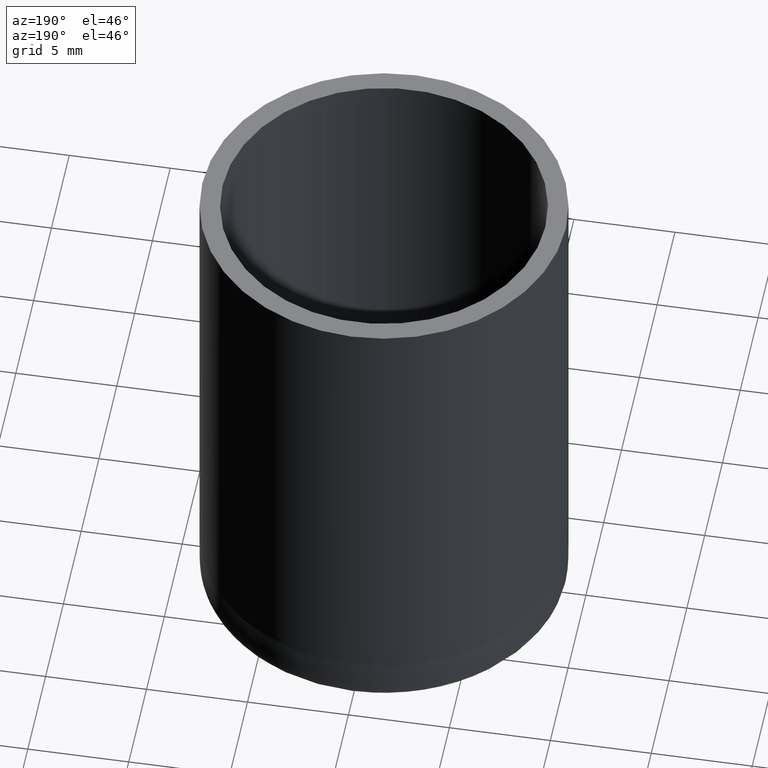
[diagram: clean part render]
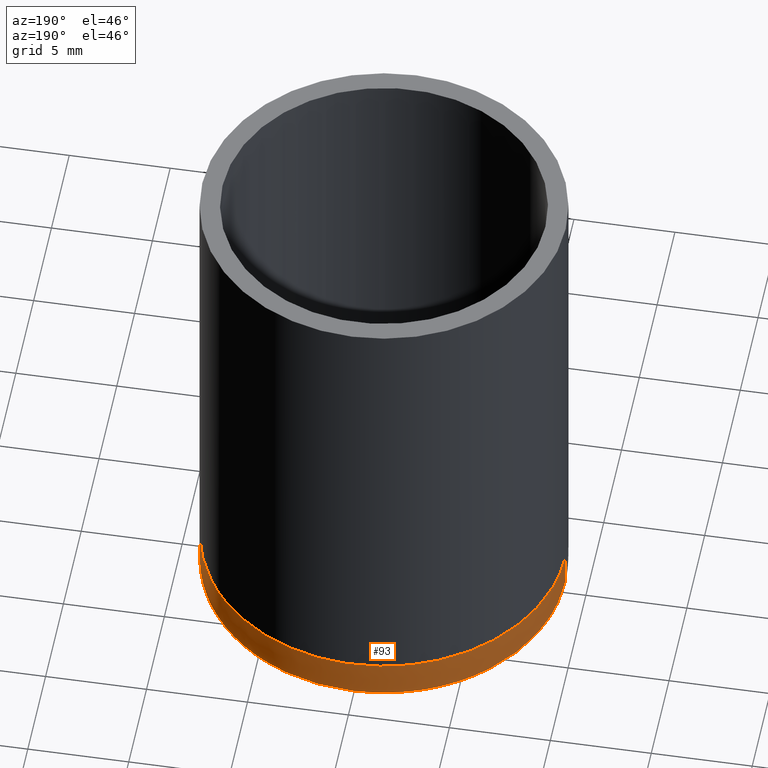
[diagram: same view with one face highlighted and labeled with its STEP entity id]
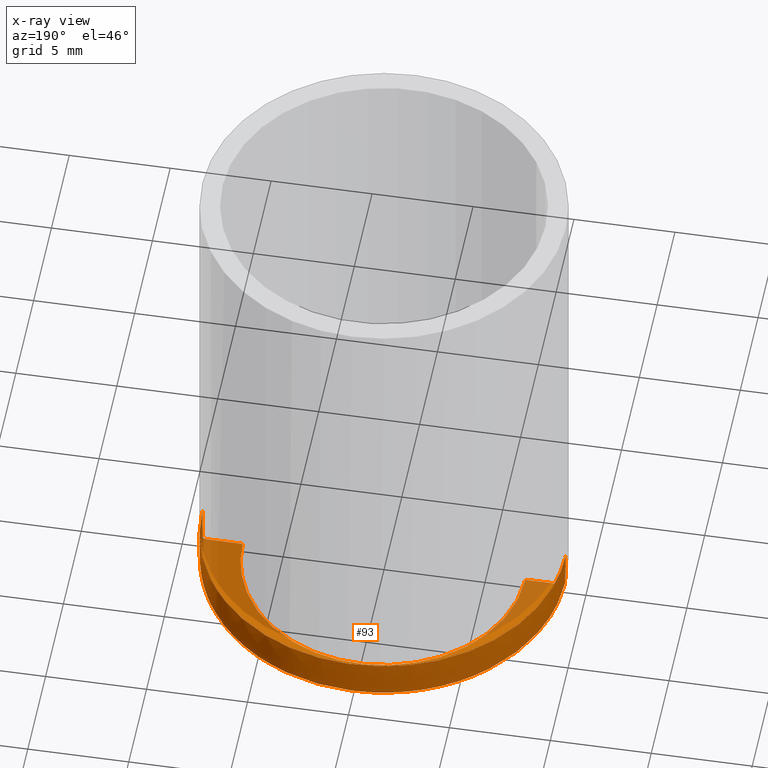
[diagram: x-ray of the same camera — body ghosted, the highlighted face saturated]
A machine part, auxiliary view. The second image highlights one B-rep face of the part: STEP entity #93.
The next image is the same camera in x-ray: the body ghosted, the highlighted face saturated — about 21% of this face is hidden behind the body in this view.
In plain terms, the highlighted face is a freeform B-spline surface patch.
Its self-contained STEP definition (entity closure, byte-faithful):
#3 =( BOUNDED_SURFACE ( )  B_SPLINE_SURFACE ( 2, 3, ( 
 ( #583, #352, #393, #348, #116, #298, #19, #390, #21, #65, #445, #110, #69, #157, #300, #114, #438, #160, #15, #444, #496, #258, #208, #163, #164, #500, #343, #543, #256, #18, #63, #387, #351, #587 ),
 ( #112, #106, #119, #592, #307, #216, #593, #551, #512, #76, #261, #602, #505, #361, #554, #212, #118, #596, #266, #506, #447, #508, #259, #260, #224, #452, #175, #404, #513, #454, #23, #314, #401, #356 ),
 ( #32, #125, #74, #221, #357, #264, #304, #30, #168, #395, #213, #22, #450, #127, #170, #552, #394, #459, #78, #594, #311, #399, #359, #308, #355, #26, #75, #72, #171, #117, #166, #555, #515, #134 ) ),
 .UNSPECIFIED., .F., .T., .T. ) 
 B_SPLINE_SURFACE_WITH_KNOTS ( ( 3, 3 ),
 ( 4, 2, 2, 2, 2, 2, 2, 2, 2, 2, 2, 2, 2, 2, 2, 2, 4 ),
 ( 0.0000000000000000000, 1.000000000000000000 ),
 ( 0.0000000000000000000, 0.3926990816987241400, 0.7853981633974482800, 1.178097245096172400, 1.570796326794896600, 1.963495408493620700, 2.356194490192344800, 2.748893571891069000, 3.141592653589793100, 3.534291735288517300, 3.926990816987241400, 4.319689898685965100, 4.712388980384689700, 5.105088062083414300, 5.497787143782138000, 5.890486225480861600, 6.283185307179586200 ),
 .UNSPECIFIED. ) 
 GEOMETRIC_REPRESENTATION_ITEM ( )  RATIONAL_B_SPLINE_SURFACE ( (
 ( 1.000000000000000000, 1.000000000000000000, 1.000000000000000000, 1.000000000000000000, 1.000000000000000000, 1.000000000000000000, 1.000000000000000000, 1.000000000000000000, 1.000000000000000000, 1.000000000000000000, 1.000000000000000000, 1.000000000000000000, 1.000000000000000000, 1.000000000000000000, 1.000000000000000000, 1.000000000000000000, 1.000000000000000000, 1.000000000000000000, 1.000000000000000000, 1.000000000000000000, 1.000000000000000000, 1.000000000000000000, 1.000000000000000000, 1.000000000000000000, 1.000000000000000000, 1.000000000000000000, 1.000000000000000000, 1.000000000000000000, 1.000000000000000000, 1.000000000000000000, 1.000000000000000000, 1.000000000000000000, 1.000000000000000000, 1.000000000000000000),
 ( 14.14213562373095100, 14.14213562373095100, 14.14213562373095500, 14.14213562373095500, 14.14213562373095100, 14.14213562373095100, 14.14213562373095500, 14.14213562373095500, 14.14213562373095100, 14.14213562373095100, 14.14213562373094900, 14.14213562373094900, 14.14213562373095500, 14.14213562373095500, 14.14213562373094900, 14.14213562373094900, 14.14213562373095100, 14.14213562373095100, 14.14213562373094600, 14.14213562373094600, 14.14213562373095100, 14.14213562373095100, 14.14213562373094900, 14.14213562373094900, 14.14213562373095500, 14.14213562373095500, 14.14213562373095100, 14.14213562373095100, 14.14213562373095500, 14.14213562373095500, 14.14213562373094900, 14.14213562373094900, 14.14213562373095100, 14.14213562373095100),
 ( 1.000000000000000000, 1.000000000000000000, 1.000000000000000000, 1.000000000000000000, 1.000000000000000000, 1.000000000000000000, 1.000000000000000000, 1.000000000000000000, 1.000000000000000000, 1.000000000000000000, 1.000000000000000000, 1.000000000000000000, 1.000000000000000000, 1.000000000000000000, 1.000000000000000000, 1.000000000000000000, 1.000000000000000000, 1.000000000000000000, 1.000000000000000000, 1.000000000000000000, 1.000000000000000000, 1.000000000000000000, 1.000000000000000000, 1.000000000000000000, 1.000000000000000000, 1.000000000000000000, 1.000000000000000000, 1.000000000000000000, 1.000000000000000000, 1.000000000000000000, 1.000000000000000000, 1.000000000000000000, 1.000000000000000000, 1.000000000000000000) ) ) 
 REPRESENTATION_ITEM ( '' )  SURFACE ( )  );
#7 = FACE_OUTER_BOUND ( 'NONE', #546, .T. ) ;
#12 = CARTESIAN_POINT ( 'NONE',  ( 7.864077495188316100, 4.532570823338097900, 2.000000000000001800 ) ) ;
#15 = CARTESIAN_POINT ( 'NONE',  ( -8.765754088481543200, -2.355730962935216300, 2.000000000000001800 ) ) ;
#18 = CARTESIAN_POINT ( 'NONE',  ( 7.197001578750059600, -5.530920482607799100, 2.000000000000001800 ) ) ;
#19 = CARTESIAN_POINT ( 'NONE',  ( 4.532570819635877200, 7.864077496721830800, 2.000000000000001800 ) ) ;
#21 = CARTESIAN_POINT ( 'NONE',  ( 1.178097241089039600, 9.000000000000000000, 2.000000000000001800 ) ) ;
#22 = CARTESIAN_POINT ( 'NONE',  ( -3.525332859716895600, 6.116504719672516200, 1.734723475976807100E-015 ) ) ;
#23 = CARTESIAN_POINT ( 'NONE',  ( 7.864077496722276600, -4.532570819635886900, 1.734723475976807300E-015 ) ) ;
#26 = CARTESIAN_POINT ( 'NONE',  ( 0.9162978541803755700, -6.999999999999999100, 1.734723475976807100E-015 ) ) ;
#28 = CARTESIAN_POINT ( 'NONE',  ( 5.273456898050755000, 4.626093170442653800, -0.0000000000000000000 ) ) ;
#30 = CARTESIAN_POINT ( 'NONE',  ( 1.832235193394360100, 6.817808735485497700, 1.734723475976807100E-015 ) ) ;
#31 = CARTESIAN_POINT ( 'NONE',  ( 7.000000000000000900, 0.4583463344911470900, -0.0000000000000000000 ) ) ;
#32 = CARTESIAN_POINT ( 'NONE',  ( 6.999999999999999100, 0.0000000000000000000, 1.734723475976807100E-015 ) ) ;
#36 = CARTESIAN_POINT ( 'NONE',  ( -9.000000000000000000, 1.103971260012029000E-015, 1.734723475976807300E-015 ) ) ;
#38 = CARTESIAN_POINT ( 'NONE',  ( 6.955024288918110600, 0.9135289665447016100, -0.0000000000000000000 ) ) ;
#40 = CARTESIAN_POINT ( 'NONE',  ( -6.999999999999999100, 8.673617379884035500E-016, 8.673617379884035500E-016 ) ) ;
#48 = CARTESIAN_POINT ( 'NONE',  ( 9.000000000000000000, 0.0000000000000000000, 1.734723475976807300E-015 ) ) ;
#50 = CARTESIAN_POINT ( 'NONE',  ( 5.530920479774233700, 7.197001581583620600, 2.000000000000001800 ) ) ;
#57 = CARTESIAN_POINT ( 'NONE',  ( 6.999999999999999100, 0.0000000000000000000, 8.673617379884035500E-016 ) ) ;
#63 = CARTESIAN_POINT ( 'NONE',  ( 7.864077496721888500, -4.532570819635727100, 2.000000000000001800 ) ) ;
#65 = CARTESIAN_POINT ( 'NONE',  ( -1.178097241089038200, 9.000000000000000000, 2.000000000000001800 ) ) ;
#69 = CARTESIAN_POINT ( 'NONE',  ( -5.530920482607776900, 7.197001578750081000, 2.000000000000001800 ) ) ;
#72 = CARTESIAN_POINT ( 'NONE',  ( 3.525332859716758800, -6.116504719672669000, 1.734723475976807100E-015 ) ) ;
#74 = CARTESIAN_POINT ( 'NONE',  ( 6.817808735485234800, 1.832235193394431600, 1.734723475976807100E-015 ) ) ;
#75 = CARTESIAN_POINT ( 'NONE',  ( 1.832235193394475200, -6.817808735485352000, 1.734723475976807100E-015 ) ) ;
#76 = CARTESIAN_POINT ( 'NONE',  ( -1.178097241089038200, 8.999999999999998200, 1.734723475976807300E-015 ) ) ;
#78 = CARTESIAN_POINT ( 'NONE',  ( -6.817808735485646900, -1.832235193394427900, 1.734723475976807100E-015 ) ) ;
#80 = CARTESIAN_POINT ( 'NONE',  ( -5.273401766169546300, 4.626038038560709600, 0.0000000000000000000 ) ) ;
#82 = CARTESIAN_POINT ( 'NONE',  ( 9.000000000000000000, 5.510910596163088600E-016, 2.000000000000001800 ) ) ;
#92 = CARTESIAN_POINT ( 'NONE',  ( -8.999999999999998200, 1.178097245096171100, 2.000000000000001800 ) ) ;
#93 = ADVANCED_FACE ( 'NONE', ( #7 ), #3, .T. ) ;
#106 = CARTESIAN_POINT ( 'NONE',  ( 8.999999999999998200, 1.178097241091292000, 1.734723475976807300E-015 ) ) ;
#110 = CARTESIAN_POINT ( 'NONE',  ( -4.532570819636053000, 7.864077496721756200, 2.000000000000001800 ) ) ;
#112 = CARTESIAN_POINT ( 'NONE',  ( 8.999999999999998200, 0.0000000000000000000, 1.734723475976807300E-015 ) ) ;
#114 = CARTESIAN_POINT ( 'NONE',  ( -8.765754088481420700, 2.355730962935523200, 2.000000000000001800 ) ) ;
#116 = CARTESIAN_POINT ( 'NONE',  ( 7.197001578749834000, 5.530920482608019400, 2.000000000000001800 ) ) ;
#117 = CARTESIAN_POINT ( 'NONE',  ( 5.597667894583356200, -4.301827042028308200, 1.734723475976807100E-015 ) ) ;
#118 = CARTESIAN_POINT ( 'NONE',  ( -8.999999999999998200, 1.178097241089039800, 1.734723475976807300E-015 ) ) ;
#119 = CARTESIAN_POINT ( 'NONE',  ( 8.765754088480962400, 2.355730962935613300, 1.734723475976806900E-015 ) ) ;
#120 = VERTEX_POINT ( 'NONE', #136 ) ;
#122 = VERTEX_POINT ( 'NONE', #82 ) ;
#123 = CARTESIAN_POINT ( 'NONE',  ( 6.075901012625232400, 3.505729637477756900, -0.0000000000000000000 ) ) ;
#125 = CARTESIAN_POINT ( 'NONE',  ( 6.999999999999999100, 0.9162978541821159600, 1.734723475976807100E-015 ) ) ;
#127 = CARTESIAN_POINT ( 'NONE',  ( -5.597667894583401500, 4.301827042028262900, 1.734723475976807100E-015 ) ) ;
#129 = CARTESIAN_POINT ( 'NONE',  ( 4.626038038560912100, 5.273401766169008900, 0.0000000000000000000 ) ) ;
#130 = CARTESIAN_POINT ( 'NONE',  ( -4.626093170442124400, 5.273456898050948600, -0.0000000000000000000 ) ) ;
#132 = CARTESIAN_POINT ( 'NONE',  ( -0.4577552816898854400, 6.999961015872925100, 0.0000000000000000000 ) ) ;
#134 = CARTESIAN_POINT ( 'NONE',  ( 6.999999999999999100, 0.0000000000000000000, 1.734723475976807100E-015 ) ) ;
#136 = CARTESIAN_POINT ( 'NONE',  ( -6.999999999999999100, 8.673617379884035500E-016, 8.673617379884035500E-016 ) ) ;
#146 = CARTESIAN_POINT ( 'NONE',  ( 2.355730959233521400, 8.765754090014837600, 2.000000000000001300 ) ) ;
#157 = CARTESIAN_POINT ( 'NONE',  ( -7.197001578750087200, 5.530920482607766300, 2.000000000000001800 ) ) ;
#158 = EDGE_CURVE ( 'NONE', #455, #120, #372, .T. ) ;
#160 = CARTESIAN_POINT ( 'NONE',  ( -9.000000000000000000, -1.178097241089037600, 2.000000000000001800 ) ) ;
#163 = CARTESIAN_POINT ( 'NONE',  ( -2.355730962936081400, -8.765754088481189800, 2.000000000000001800 ) ) ;
#164 = CARTESIAN_POINT ( 'NONE',  ( -1.178097241089025800, -9.000000000000001800, 2.000000000000001800 ) ) ;
#166 = CARTESIAN_POINT ( 'NONE',  ( 6.116504719672263900, -3.525332859716779700, 1.734723475976807100E-015 ) ) ;
#168 = CARTESIAN_POINT ( 'NONE',  ( 0.9162978541803639100, 6.999999999999999100, 1.734723475976807100E-015 ) ) ;
#170 = CARTESIAN_POINT ( 'NONE',  ( -6.116504719672365200, 3.525332859717026100, 1.734723475976807100E-015 ) ) ;
#171 = CARTESIAN_POINT ( 'NONE',  ( 4.301827042028279800, -5.597667894583384700, 1.734723475976807100E-015 ) ) ;
#172 = EDGE_CURVE ( 'NONE', #120, #332, #288, .T. ) ;
#175 = CARTESIAN_POINT ( 'NONE',  ( 2.355730962935725700, -8.765754088480882400, 3.991155744852366200E-013 ) ) ;
#178 = B_SPLINE_CURVE_WITH_KNOTS ( 'NONE', 3,
 ( #615, #325, #579, #12, #194, #50, #374, #146, #487, #481, #248, #190, #376, #484, #572, #576, #92, #532 ),
 .UNSPECIFIED., .F., .F.,
 ( 4, 2, 2, 2, 2, 2, 2, 2, 4 ),
 ( 0.0000000000000000000, 0.06250000000000005600, 0.1250000000000001100, 0.1875000000000001100, 0.2500000000000001100, 0.3125000000000001100, 0.3750000000000001100, 0.4375000000000000600, 0.5000000000000000000 ),
 .UNSPECIFIED. ) ;
#190 = CARTESIAN_POINT ( 'NONE',  ( -4.532570823338096100, 7.864077495188319700, 2.000000000000001300 ) ) ;
#194 = CARTESIAN_POINT ( 'NONE',  ( 7.197001581583618800, 5.530920479774234600, 2.000000000000001800 ) ) ;
#196 = CARTESIAN_POINT ( 'NONE',  ( -9.000000000000000000, 5.421010862427522200E-016, 2.000000000000001800 ) ) ;
#208 = CARTESIAN_POINT ( 'NONE',  ( -4.532570819635557400, -7.864077496721959500, 2.000000000000001800 ) ) ;
#212 = CARTESIAN_POINT ( 'NONE',  ( -8.765754088481482900, 2.355730962935348200, 1.734723475976807300E-015 ) ) ;
#213 = CARTESIAN_POINT ( 'NONE',  ( -1.832235193394365500, 6.817808735485495000, 1.734723475976807100E-015 ) ) ;
#216 = CARTESIAN_POINT ( 'NONE',  ( 5.530920482608021200, 7.197001578749834000, 1.734723475976807300E-015 ) ) ;
#217 = CARTESIAN_POINT ( 'NONE',  ( 1.817385608177650700, 6.775236007512286400, -0.0000000000000000000 ) ) ;
#221 = CARTESIAN_POINT ( 'NONE',  ( 6.116504719672778200, 3.525332859716825400, 1.734723475976807100E-015 ) ) ;
#222 = ORIENTED_EDGE ( 'NONE', *, *, #451, .F. ) ;
#224 = CARTESIAN_POINT ( 'NONE',  ( -1.178097241089026200, -8.999999999999998200, 1.734723475976806900E-015 ) ) ;
#228 = CARTESIAN_POINT ( 'NONE',  ( 6.642368106597753100, 2.255888209478373000, -0.0000000000000000000 ) ) ;
#231 = CARTESIAN_POINT ( 'NONE',  ( -7.000038984127071400, 0.4577552816867011500, -0.0000000000000000000 ) ) ;
#232 = CARTESIAN_POINT ( 'NONE',  ( 9.000000000000000000, 5.510910596163088600E-016, 2.000000000000001800 ) ) ;
#248 = CARTESIAN_POINT ( 'NONE',  ( -2.355730959233523600, 8.765754090014837600, 2.000000000000001800 ) ) ;
#256 = CARTESIAN_POINT ( 'NONE',  ( 5.530920482607757400, -7.197001578750090700, 2.000000000000001800 ) ) ;
#258 = CARTESIAN_POINT ( 'NONE',  ( -5.530920482607371000, -7.197001578750484200, 2.000000000000001800 ) ) ;
#259 = CARTESIAN_POINT ( 'NONE',  ( -4.532570819635886000, -7.864077496722276600, 1.734723475976807300E-015 ) ) ;
#260 = CARTESIAN_POINT ( 'NONE',  ( -2.355730962935751500, -8.765754088480871800, 1.734723475976807300E-015 ) ) ;
#261 = CARTESIAN_POINT ( 'NONE',  ( -2.355730962935641800, 8.765754088481578800, 1.734723475976807300E-015 ) ) ;
#263 = CARTESIAN_POINT ( 'NONE',  ( -3.101679843625301000, 6.291945348562983000, 0.0000000000000000000 ) ) ;
#264 = CARTESIAN_POINT ( 'NONE',  ( 4.301827042028372200, 5.597667894583291400, 1.734723475976807100E-015 ) ) ;
#265 = CARTESIAN_POINT ( 'NONE',  ( -1.817370587953826900, 6.775160495766372500, 0.0000000000000000000 ) ) ;
#266 = CARTESIAN_POINT ( 'NONE',  ( -8.765754088483079800, -2.355730962935127100, 3.991155744864715300E-013 ) ) ;
#268 = CARTESIAN_POINT ( 'NONE',  ( -9.000000000000000000, 5.421010862427522200E-016, 2.000000000000001800 ) ) ;
#269 = CARTESIAN_POINT ( 'NONE',  ( 6.775121444590564800, 1.817566825776616900, 0.0000000000000000000 ) ) ;
#272 = CARTESIAN_POINT ( 'NONE',  ( -3.505729637479674500, 6.075901012623995200, -0.0000000000000000000 ) ) ;
#278 = ORIENTED_EDGE ( 'NONE', *, *, #172, .F. ) ;
#288 = B_SPLINE_CURVE_WITH_KNOTS ( 'NONE', 3,
 ( #518, #231, #606, #367, #363, #563, #557, #603, #80, #130, #595, #272, #263, #463, #265, #458, #132, #406, #605, #217, #310, #601, #313, #320, #129, #28, #364, #123, #461, #228, #269, #38, #31, #453 ),
 .UNSPECIFIED., .F., .F.,
 ( 4, 2, 2, 2, 2, 2, 2, 2, 2, 2, 2, 2, 2, 2, 2, 2, 4 ),
 ( 0.5000000000000000000, 0.5312500000000000000, 0.5624999999999998900, 0.5937499999999998900, 0.6249999999999998900, 0.6562499999999998900, 0.6874999999999998900, 0.7187499999999998900, 0.7500000000000000000, 0.7812500000000000000, 0.8125000000000000000, 0.8437500000000000000, 0.8750000000000000000, 0.9062500000000000000, 0.9375000000000000000, 0.9687500000000000000, 1.000000000000000000 ),
 .UNSPECIFIED. ) ;
#298 = CARTESIAN_POINT ( 'NONE',  ( 5.530920482608021200, 7.197001578749832300, 2.000000000000001800 ) ) ;
#300 = CARTESIAN_POINT ( 'NONE',  ( -7.864077496721726800, 4.532570819636115200, 2.000000000000001800 ) ) ;
#304 = CARTESIAN_POINT ( 'NONE',  ( 3.525332859716890700, 6.116504719672518900, 1.734723475976807100E-015 ) ) ;
#307 = CARTESIAN_POINT ( 'NONE',  ( 7.197001578749834000, 5.530920482608020300, 1.734723475976807300E-015 ) ) ;
#308 = CARTESIAN_POINT ( 'NONE',  ( -1.832235193394495100, -6.817808735485344100, 1.734723475976807100E-015 ) ) ;
#310 = CARTESIAN_POINT ( 'NONE',  ( 2.255858372324568900, 6.642296073321866800, 0.0000000000000000000 ) ) ;
#311 = CARTESIAN_POINT ( 'NONE',  ( -5.597667894583792300, -4.301827042027873000, 1.734723475976807100E-015 ) ) ;
#313 = CARTESIAN_POINT ( 'NONE',  ( 3.505686863511604300, 6.075836996856180500, 0.0000000000000000000 ) ) ;
#314 = CARTESIAN_POINT ( 'NONE',  ( 8.765754088480871800, -2.355730962935751900, 1.734723475976807300E-015 ) ) ;
#320 = CARTESIAN_POINT ( 'NONE',  ( 4.271815936512706600, 5.564018512806888400, -0.0000000000000000000 ) ) ;
#325 = CARTESIAN_POINT ( 'NONE',  ( 9.000000000000001800, 1.178097245096173800, 2.000000000000002700 ) ) ;
#332 = VERTEX_POINT ( 'NONE', #419 ) ;
#343 = CARTESIAN_POINT ( 'NONE',  ( 2.355730962936054300, -8.765754088481196900, 2.000000000000001800 ) ) ;
#348 = CARTESIAN_POINT ( 'NONE',  ( 7.864077496721839600, 4.532570819635854100, 2.000000000000001800 ) ) ;
#351 = CARTESIAN_POINT ( 'NONE',  ( 9.000000000000000000, -1.178097241091293100, 2.000000000000001800 ) ) ;
#352 = CARTESIAN_POINT ( 'NONE',  ( 9.000000000000000000, 1.178097241091291800, 2.000000000000001800 ) ) ;
#355 = CARTESIAN_POINT ( 'NONE',  ( -0.9162978541803532600, -6.999999999999999100, 1.734723475976807100E-015 ) ) ;
#356 = CARTESIAN_POINT ( 'NONE',  ( 8.999999999999998200, 0.0000000000000000000, 1.734723475976807300E-015 ) ) ;
#357 = CARTESIAN_POINT ( 'NONE',  ( 5.597667894583292300, 4.301827042028371300, 1.734723475976807100E-015 ) ) ;
#359 = CARTESIAN_POINT ( 'NONE',  ( -3.525332859716778800, -6.116504719672661000, 1.734723475976807100E-015 ) ) ;
#361 = CARTESIAN_POINT ( 'NONE',  ( -7.197001578750088100, 5.530920482607769800, 1.734723475976806900E-015 ) ) ;
#363 = CARTESIAN_POINT ( 'NONE',  ( -6.642296073323473500, 2.255858372321499800, 0.0000000000000000000 ) ) ;
#364 = CARTESIAN_POINT ( 'NONE',  ( 5.563954497038031900, 4.271773162546506500, 0.0000000000000000000 ) ) ;
#367 = CARTESIAN_POINT ( 'NONE',  ( -6.775236007513320200, 1.817385608175990300, -0.0000000000000000000 ) ) ;
#372 =( BOUNDED_CURVE ( )  B_SPLINE_CURVE ( 2, ( #268, #36, #40 ),
 .UNSPECIFIED., .F., .F. ) 
 B_SPLINE_CURVE_WITH_KNOTS ( ( 3, 3 ),
 ( 0.0000000000000000000, 1.000000000000000000 ),
 .UNSPECIFIED. ) 
 CURVE ( )  GEOMETRIC_REPRESENTATION_ITEM ( )  RATIONAL_B_SPLINE_CURVE ( ( 1.000000000000000000, 14.14213562373095100, 1.000000000000000000 ) ) 
 REPRESENTATION_ITEM ( '' )  );
#374 = CARTESIAN_POINT ( 'NONE',  ( 4.532570823338096100, 7.864077495188323200, 2.000000000000002200 ) ) ;
#376 = CARTESIAN_POINT ( 'NONE',  ( -5.530920479774233700, 7.197001581583620600, 2.000000000000001800 ) ) ;
#387 = CARTESIAN_POINT ( 'NONE',  ( 8.765754088481260800, -2.355730962935912200, 2.000000000000001800 ) ) ;
#390 = CARTESIAN_POINT ( 'NONE',  ( 2.355730962935730600, 8.765754088481333600, 2.000000000000001800 ) ) ;
#393 = CARTESIAN_POINT ( 'NONE',  ( 8.765754088481321200, 2.355730962935762600, 2.000000000000001800 ) ) ;
#394 = CARTESIAN_POINT ( 'NONE',  ( -6.999999999999999100, 0.9162978541803642500, 1.734723475976807100E-015 ) ) ;
#395 = CARTESIAN_POINT ( 'NONE',  ( -0.9162978541803630300, 6.999999999999999100, 1.734723475976807100E-015 ) ) ;
#399 = CARTESIAN_POINT ( 'NONE',  ( -4.301827042027866800, -5.597667894583798500, 1.734723475976807100E-015 ) ) ;
#401 = CARTESIAN_POINT ( 'NONE',  ( 8.999999999999998200, -1.178097241091293100, 1.734723475976807300E-015 ) ) ;
#404 = CARTESIAN_POINT ( 'NONE',  ( 4.532570819635861200, -7.864077496722286400, -3.956461275332821500E-013 ) ) ;
#406 = CARTESIAN_POINT ( 'NONE',  ( 0.4577552816898847700, 7.000038984127071400, -0.0000000000000000000 ) ) ;
#419 = CARTESIAN_POINT ( 'NONE',  ( 6.999999999999999100, 0.0000000000000000000, 8.673617379884035500E-016 ) ) ;
#438 = CARTESIAN_POINT ( 'NONE',  ( -9.000000000000000000, 1.178097241089039800, 2.000000000000001800 ) ) ;
#444 = CARTESIAN_POINT ( 'NONE',  ( -7.864077496721624700, -4.532570819636373600, 2.000000000000001800 ) ) ;
#445 = CARTESIAN_POINT ( 'NONE',  ( -2.355730962935568100, 8.765754088481401100, 2.000000000000001800 ) ) ;
#447 = CARTESIAN_POINT ( 'NONE',  ( -7.197001578750476200, -5.530920482607379000, 1.734723475976807300E-015 ) ) ;
#448 = EDGE_CURVE ( 'NONE', #122, #332, #541, .T. ) ;
#450 = CARTESIAN_POINT ( 'NONE',  ( -4.301827042028270000, 5.597667894583395300, 1.734723475976807100E-015 ) ) ;
#451 = EDGE_CURVE ( 'NONE', #122, #455, #178, .T. ) ;
#452 = CARTESIAN_POINT ( 'NONE',  ( 1.178097241089054200, -8.999999999999998200, 1.734723475976806900E-015 ) ) ;
#453 = CARTESIAN_POINT ( 'NONE',  ( 6.999999999999999100, 0.0000000000000000000, 8.673617379884035500E-016 ) ) ;
#454 = CARTESIAN_POINT ( 'NONE',  ( 7.197001578750258600, -5.530920482607994500, 1.734723475976806900E-015 ) ) ;
#455 = VERTEX_POINT ( 'NONE', #196 ) ;
#458 = CARTESIAN_POINT ( 'NONE',  ( -0.9137252043661264800, 6.954985237742498300, -0.0000000000000000000 ) ) ;
#459 = CARTESIAN_POINT ( 'NONE',  ( -6.999999999999999100, -0.9162978541803625800, 1.734723475976807100E-015 ) ) ;
#461 = CARTESIAN_POINT ( 'NONE',  ( 6.291945348560260800, 3.101679843632883000, 0.0000000000000000000 ) ) ;
#463 = CARTESIAN_POINT ( 'NONE',  ( -2.255888209485959800, 6.642368106595032600, -0.0000000000000000000 ) ) ;
#481 = CARTESIAN_POINT ( 'NONE',  ( -1.178097245096172600, 9.000000000000000000, 2.000000000000001300 ) ) ;
#484 = CARTESIAN_POINT ( 'NONE',  ( -7.197001581583621500, 5.530920479774234600, 2.000000000000002200 ) ) ;
#487 = CARTESIAN_POINT ( 'NONE',  ( 1.178097245096171500, 9.000000000000000000, 2.000000000000001800 ) ) ;
#496 = CARTESIAN_POINT ( 'NONE',  ( -7.197001578750478000, -5.530920482607379000, 2.000000000000001800 ) ) ;
#500 = CARTESIAN_POINT ( 'NONE',  ( 1.178097241089054400, -8.999999999999998200, 2.000000000000001800 ) ) ;
#505 = CARTESIAN_POINT ( 'NONE',  ( -5.530920482607778700, 7.197001578750079200, 1.734723475976806900E-015 ) ) ;
#506 = CARTESIAN_POINT ( 'NONE',  ( -7.864077496720089000, -4.532570819636464200, -3.956461275345179200E-013 ) ) ;
#508 = CARTESIAN_POINT ( 'NONE',  ( -5.530920482607371000, -7.197001578750484200, 1.734723475976807300E-015 ) ) ;
#509 = ORIENTED_EDGE ( 'NONE', *, *, #158, .F. ) ;
#512 = CARTESIAN_POINT ( 'NONE',  ( 1.178097241089039600, 8.999999999999998200, 1.734723475976807300E-015 ) ) ;
#513 = CARTESIAN_POINT ( 'NONE',  ( 5.530920482607561100, -7.197001578749894400, 1.734723475976806900E-015 ) ) ;
#515 = CARTESIAN_POINT ( 'NONE',  ( 6.999999999999999100, -0.9162978541821169600, 1.734723475976807100E-015 ) ) ;
#518 = CARTESIAN_POINT ( 'NONE',  ( -6.999999999999999100, 8.673617379884035500E-016, 8.673617379884035500E-016 ) ) ;
#532 = CARTESIAN_POINT ( 'NONE',  ( -9.000000000000000000, 5.421010862427522200E-016, 2.000000000000001800 ) ) ;
#538 = ORIENTED_EDGE ( 'NONE', *, *, #448, .T. ) ;
#541 =( BOUNDED_CURVE ( )  B_SPLINE_CURVE ( 2, ( #232, #48, #57 ),
 .UNSPECIFIED., .F., .T. ) 
 B_SPLINE_CURVE_WITH_KNOTS ( ( 3, 3 ),
 ( 0.0000000000000000000, 1.000000000000000000 ),
 .UNSPECIFIED. ) 
 CURVE ( )  GEOMETRIC_REPRESENTATION_ITEM ( )  RATIONAL_B_SPLINE_CURVE ( ( 1.000000000000000000, 14.14213562373095100, 1.000000000000000000 ) ) 
 REPRESENTATION_ITEM ( '' )  );
#543 = CARTESIAN_POINT ( 'NONE',  ( 4.532570819635531700, -7.864077496721972900, 2.000000000000001800 ) ) ;
#546 = EDGE_LOOP ( 'NONE', ( #509, #222, #538, #278 ) ) ;
#551 = CARTESIAN_POINT ( 'NONE',  ( 2.355730962936031200, 8.765754088480790100, -7.930269785437773300E-013 ) ) ;
#552 = CARTESIAN_POINT ( 'NONE',  ( -6.817808735485638900, 1.832235193394248700, 1.734723475976807100E-015 ) ) ;
#554 = CARTESIAN_POINT ( 'NONE',  ( -7.864077496721667300, 4.532570819636290200, 1.734723475976807300E-015 ) ) ;
#555 = CARTESIAN_POINT ( 'NONE',  ( 6.817808735485742000, -1.832235193394495600, 1.734723475976807100E-015 ) ) ;
#557 = CARTESIAN_POINT ( 'NONE',  ( -6.075836996858219800, 3.505686863509216400, 0.0000000000000000000 ) ) ;
#563 = CARTESIAN_POINT ( 'NONE',  ( -6.292017381834530600, 3.101709680789775300, -0.0000000000000000000 ) ) ;
#572 = CARTESIAN_POINT ( 'NONE',  ( -7.864077495188321400, 4.532570823338093500, 2.000000000000001800 ) ) ;
#576 = CARTESIAN_POINT ( 'NONE',  ( -8.765754090014841200, 2.355730959233523200, 2.000000000000002700 ) ) ;
#579 = CARTESIAN_POINT ( 'NONE',  ( 8.765754090014837600, 2.355730959233526700, 2.000000000000001800 ) ) ;
#583 = CARTESIAN_POINT ( 'NONE',  ( 9.000000000000000000, 0.0000000000000000000, 2.000000000000001800 ) ) ;
#587 = CARTESIAN_POINT ( 'NONE',  ( 9.000000000000000000, 0.0000000000000000000, 2.000000000000001800 ) ) ;
#592 = CARTESIAN_POINT ( 'NONE',  ( 7.864077496722201100, 4.532570819636004200, 1.734723475976806900E-015 ) ) ;
#593 = CARTESIAN_POINT ( 'NONE',  ( 4.532570819635577800, 7.864077496722377000, 7.964964254957309400E-013 ) ) ;
#594 = CARTESIAN_POINT ( 'NONE',  ( -6.116504719672373200, -3.525332859716809000, 1.734723475976807100E-015 ) ) ;
#595 = CARTESIAN_POINT ( 'NONE',  ( -4.271773162544563200, 5.563954497039149200, 0.0000000000000000000 ) ) ;
#596 = CARTESIAN_POINT ( 'NONE',  ( -8.999999999999998200, -1.178097241089037600, 1.734723475976807300E-015 ) ) ;
#601 = CARTESIAN_POINT ( 'NONE',  ( 3.101709680786681700, 6.292017381836148900, -0.0000000000000000000 ) ) ;
#602 = CARTESIAN_POINT ( 'NONE',  ( -4.532570819635982900, 7.864077496721582100, 1.734723475976807300E-015 ) ) ;
#603 = CARTESIAN_POINT ( 'NONE',  ( -5.564018512804816300, 4.271815936515114500, -0.0000000000000000000 ) ) ;
#605 = CARTESIAN_POINT ( 'NONE',  ( 0.9137101841422999900, 6.954909725996587100, 0.0000000000000000000 ) ) ;
#606 = CARTESIAN_POINT ( 'NONE',  ( -6.954909725995657200, 0.9137101841438819400, 0.0000000000000000000 ) ) ;
#615 = CARTESIAN_POINT ( 'NONE',  ( 9.000000000000000000, 5.510910596163088600E-016, 2.000000000000001800 ) ) ;